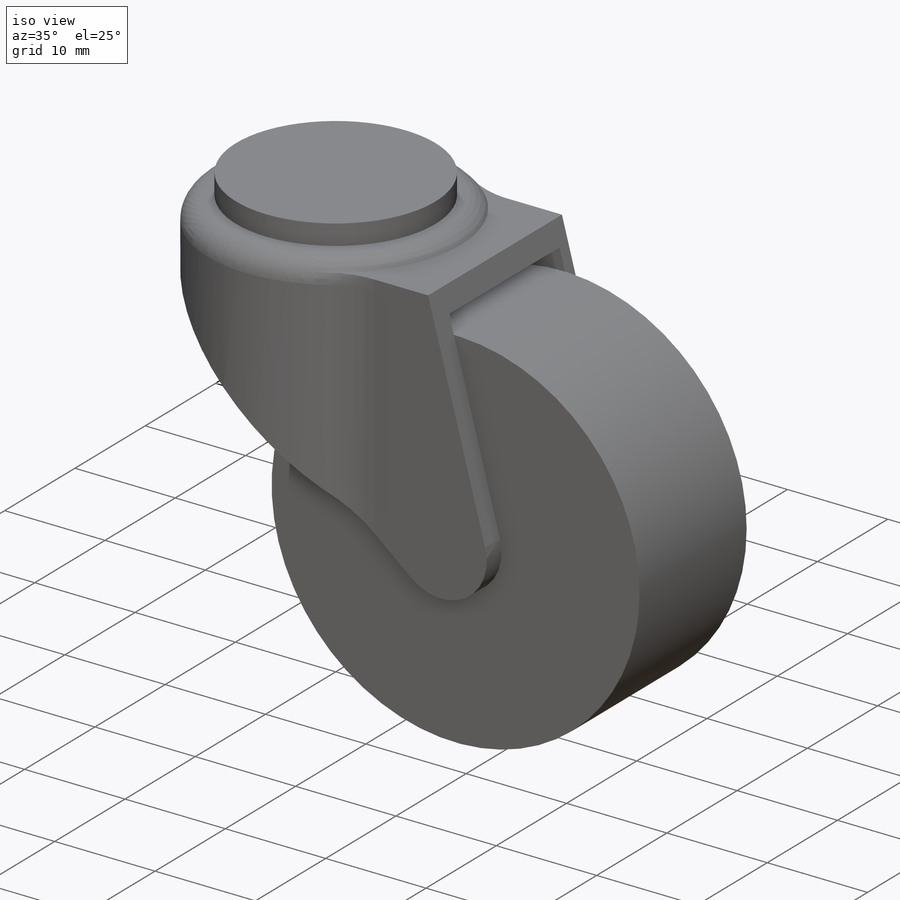
[diagram: iso view]
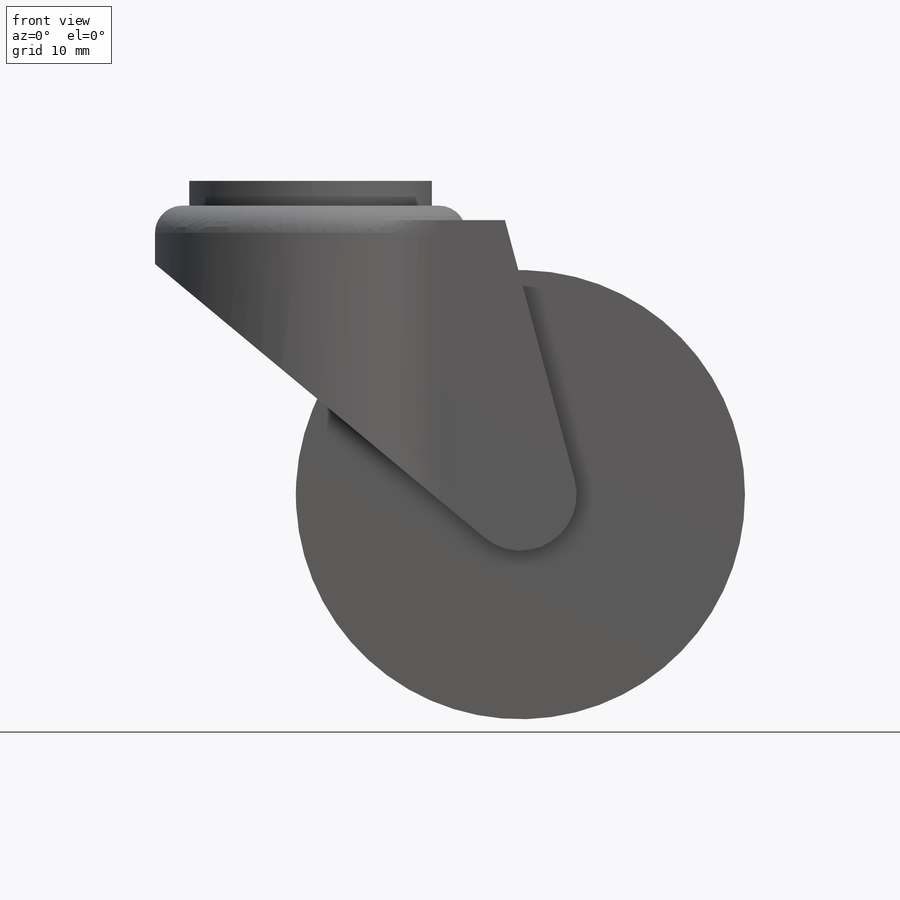
[diagram: front view]
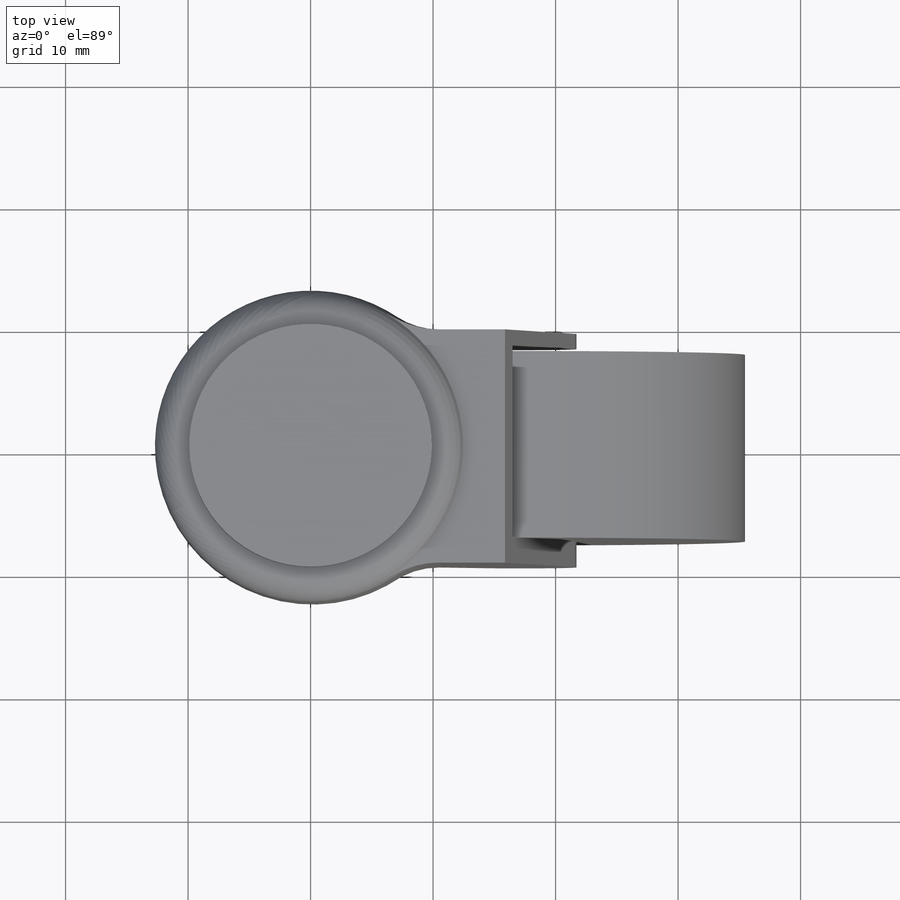
[diagram: top view]
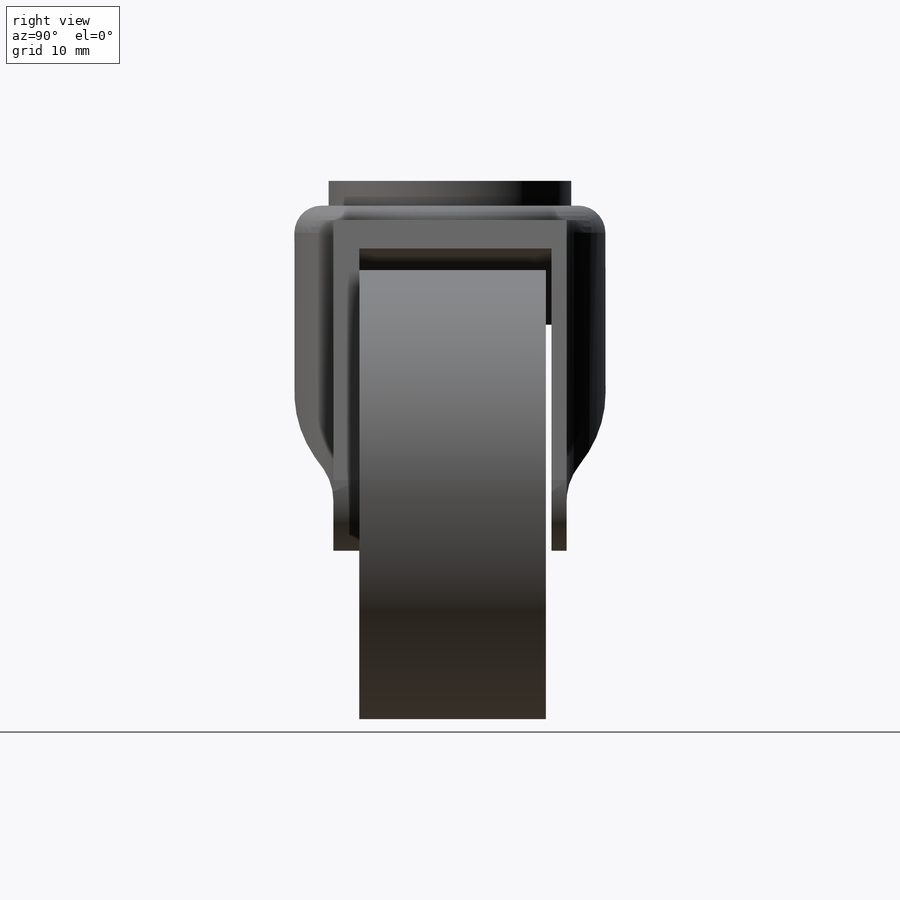
[diagram: right view]
SOLIDWORKS PART (.sldprt)
format: sldprt  version: not decoded by parser v0  size: 415,744 bytes
history: native  units: mm
features: sketch x12, extrude x6, fillet x4, cut_extrude x2, plane x2, revolve x2, material x1, shell x1, hole x1 (+12 scaffold rows collapsed)
feature tree (43):
  scaffold x12  (default folders/planes/origin — collapsed)
  material  "Material <not specified>"
  sketch  "Sketch1"  dims[D1=50.8mm]
  extrude  "Boss-Extrude1"  Depth=4.445mm
  fillet  "Fillet1"  Radius=4.445mm
  sketch  "Sketch2"  dims[D1=0.0mm]
  extrude  "Boss-Extrude2"  Depth=51.9176mm
  sketch  "Sketch4"  dims[D1=38.1mm D2=~2.38125mm]
  extrude  "Boss-Extrude3"  Depth=31.75mm
  sketch  "Sketch3"  dims[D1=9.525mm D2=~56.35625mm]
  cut_extrude  "Cut-Extrude1"  [1 undecoded]
  fillet  "Fillet2"  Radius=12.7mm
  fillet  "Fillet3"  Radius=4.7625mm
  fillet  "Fillet4"  [1 undecoded]
  sketch  "Sketch16"  dims[D1=~58.765606mm D2=~31.404806mm]
  cut_extrude  "Cut-Extrude2"  Depth=55.118mm
  sketch  "Sketch17"  dims[D1=~73.336947mm]
  extrude  "Boss-Extrude9"  Depth=30.48mm
  shell  "Shell1"  Thickness=2.54mm
  hole  "3/8 (0.375) Diameter Hole1"  Diameter=9.525mm Depth=44.45mm
  sketch  "Sketch6"  dims[D1=38.1mm D2=59.563mm]
  sketch  "Sketch7"  dims[hole-wizard template sketch: 60 standard entries collapsed; hole parameters kept: c18.Thru Hole Depth=44.45mm]
  plane  "Plane2"
  sketch  "Sketch8"  dims[c1.D5=1.5875mm c1.D6=3.175mm c1.D7=~0.79375mm c1.D9=101.6mm c1.D10=4.7498mm c1.D2=1.5875mm c1.D3=1.5875mm c2.D5=3.175mm c2.D10=~16.155402mm c2.D8=15.875mm c2.D2=~0.79375mm c2.D3=101.6mm c2.D4=1.5875mm c3.D5=3.175mm c3.D9=15.875mm c3.D10=1.5875mm c3.D1=34.925mm c3.D2=25.4mm c3.D3=6.35mm c3.D4=50.8mm c3.D8=4.8641mm c3.D11=6.35mm c3.D12=~27.338768mm c3.D13=38.1mm c3.D14=12.7mm c4.D13=12.7mm c4.D14=11.2141mm c4.D6=0.508mm c4.D3=12.7mm c4.D10=~3.516706mm c4.D11=2.54mm c4.D12=12.7mm c4.D4=4.7625mm c5.D13=34.925mm c6.D13=~3.901587deg c6.D1=34.925mm c6.D6=0.508mm c6.D7=12.7mm c6.D8=~3.516706mm c6.D9=2.54mm c6.D10=12.7mm c6.D11=50.8mm c6.D12=4.8641mm c7.D1=~45.934947mm c7.D6=50.8mm c7.D7=12.7mm c7.D8=~0.79375mm c8.D1=0.508mm c8.D2=12.7mm c8.D4=12.7mm c8.D6=38.1mm]
  revolve  "Revolve2"  Angle=360deg
  sketch  "Sketch10"  dims[c1.D5=19.05mm c1.D1=6.35mm c1.D2=1.5875mm c1.D3=3.9624mm c2.D2=1.5875mm c2.D3=3.9624mm c2.D4=~3.96875mm]
  revolve  "Revolve3"  Angle=360deg
  sketch  "Sketch11"  dims[D1=9.525mm D2=~8.138907mm D3=~16.277813mm D4=7.0485mm]
  extrude  "Boss-Extrude5"  Depth=4.7625mm
  plane  "Plane3"  Offset=8.4836mm
  sketch  "Sketch15"
  extrude  "Boss-Extrude8"  Depth=10.668mm
decode coverage: 25 of 28 modeling features carry decoded parameters
note: ~ marks probable driven/reference dimensions
note: 2 parameter values undecoded
note: suppression state not decoded; provenance and decode notes live in map.json
